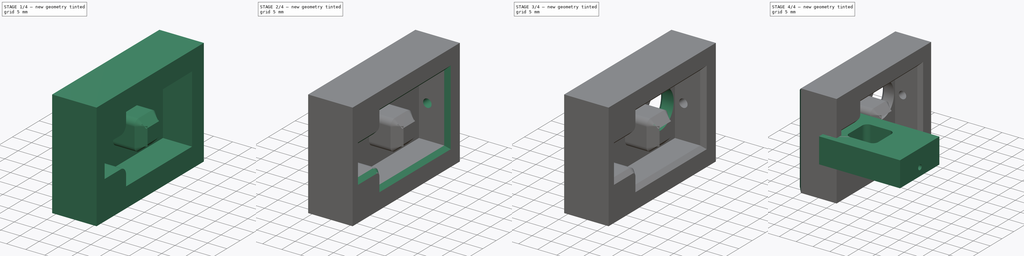
[diagram: build sequence overview — one tinted view per stage of 4, left to right]
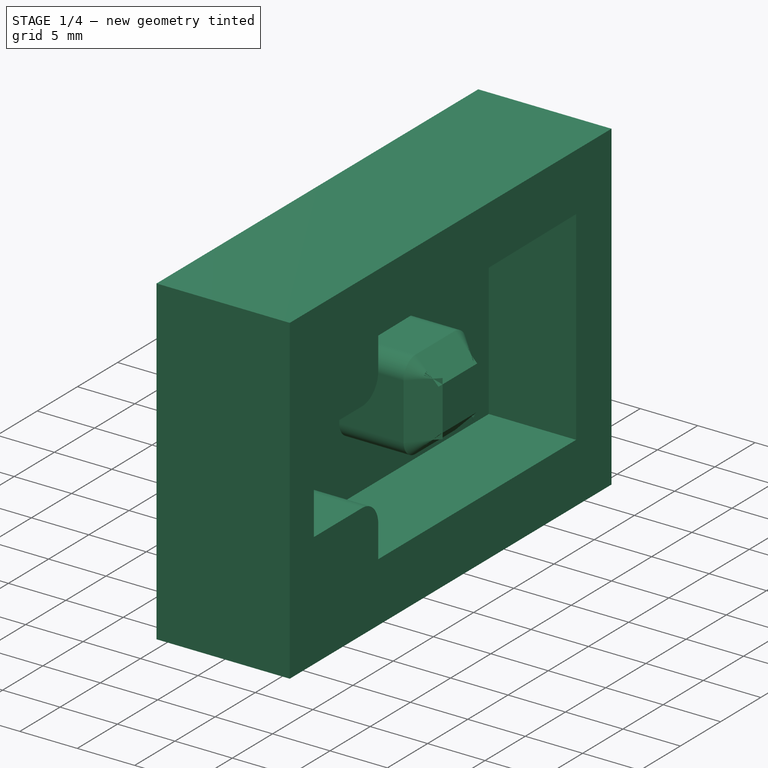
[diagram: stage 1 of 4 — iso view after this stage's code; geometry added in this stage tinted green]
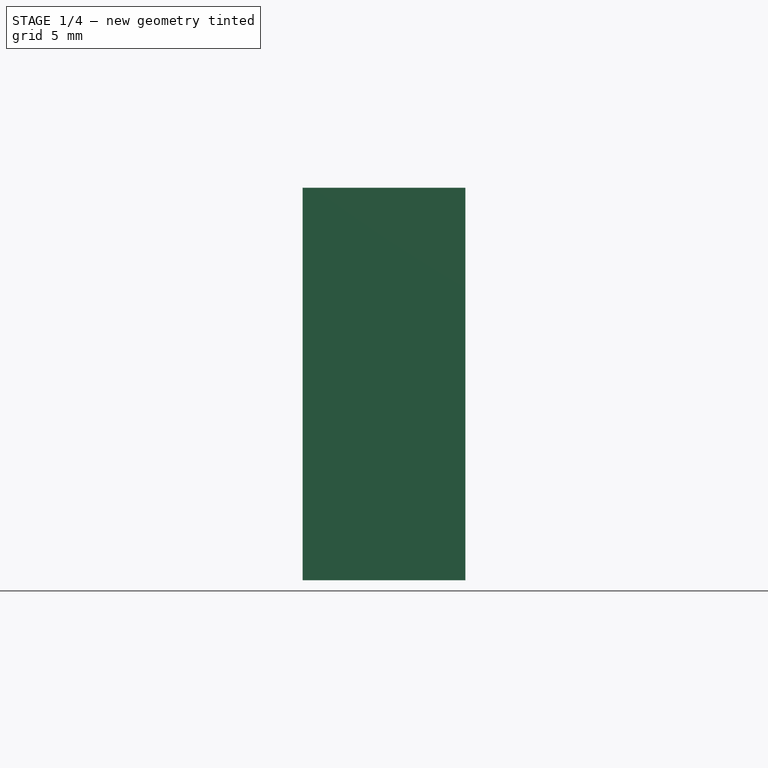
[diagram: stage 1 of 4 — front view after this stage's code; geometry added in this stage tinted green]
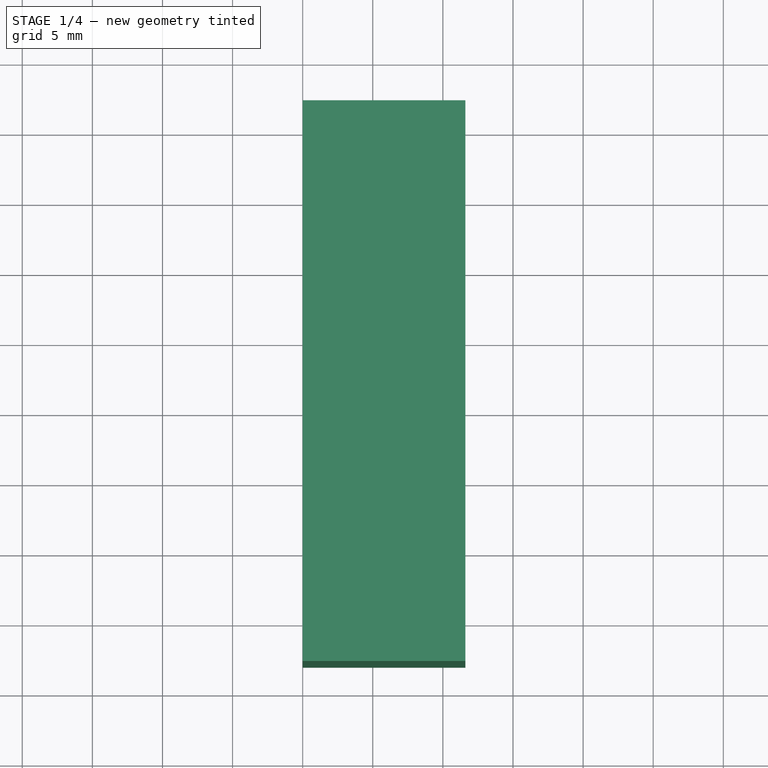
[diagram: stage 1 of 4 — top view after this stage's code; geometry added in this stage tinted green]
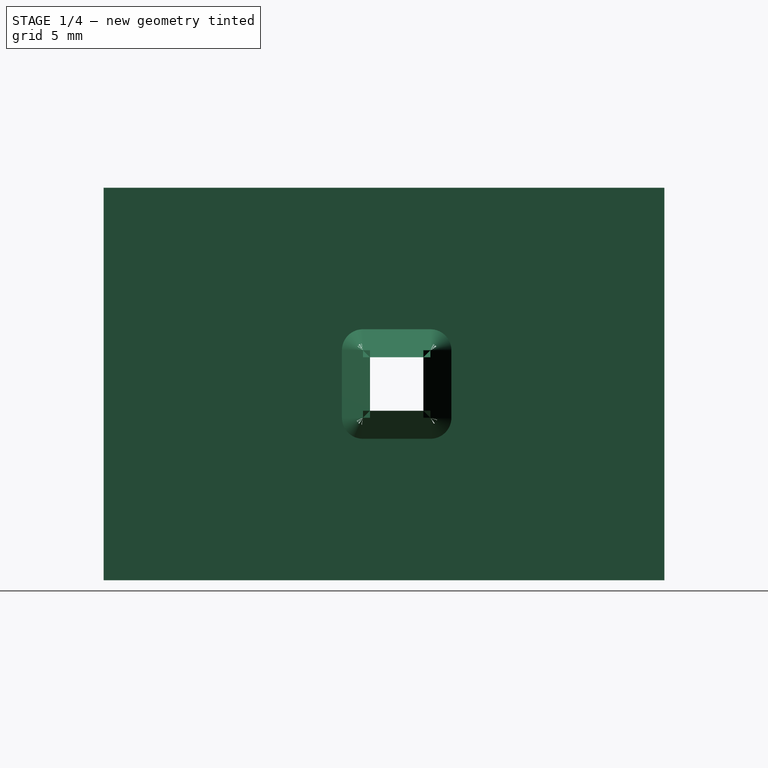
[diagram: stage 1 of 4 — right view after this stage's code; geometry added in this stage tinted green]
FCSTD DOCUMENT  (FreeCAD 1.0R39109 (Git))
Label: Servo Leg Jig
License: All rights reserved
LicenseURL: https://en.wikipedia.org/wiki/All_rights_reserved
objects: Sketcher::SketchObject×7, PartDesign::Chamfer×5, PartDesign::Pocket×4, PartDesign::Pad×2, PartDesign::Body×2, App::VarSet×1
note: 49 computed .brp shape members not serialized (recipe doc carries the construction recipe); baked Part::Feature solids carry a one-line shape summary decoded from their .brp

FEATURE [PartDesign::Body] Body007  label="sevo_legs"
  AllowCompound = false
  Group = -> [Sketch012,Pad007,Sketch015,Pocket005]
  Origin = -> Origin007
  Placement = pos=(18,0.5,7.75) rot=(-0.57735,-0.57735,0.57735;2.0944rad)
  Tip = -> Pocket005
FEATURE [App::VarSet] VarSet
  Pipe_thickness = 5
  dowel_dia = 6.2
  fillet_radius = 1.5
  gem_hole_dia = 15.5
  gem_hole_offset = 20
  mdf_thickness = 7.5
  pipe_OD = 90
  rotation_tolerence = 2.5
  servo_leg_height = 24
  servo_length = 23
  servo_width = 12.3
  shaft_width = 9
  test_tube_dia = 17
  tube_inner_dia = 79.9
FEATURE [Sketcher::SketchObject] Sketch
  ArcFitTolerance = 1e-06
  AttachmentSupport = -> [YZ_Plane]
  FullyConstrained = true
  MakeInternals = false
  MapMode = 5
  Placement = pos=(0,0,0) rot=(0.57735,0.57735,0.57735;2.0944rad)
  sketch-geometry (4):
    g0: LineSegment StartX=-3 StartY=18 StartZ=0 EndX=-3 EndY=-10 EndZ=0
    g1: LineSegment StartX=-3 StartY=-10 StartZ=0 EndX=37 EndY=-10 EndZ=0
    g2: LineSegment StartX=37 StartY=-10 StartZ=0 EndX=37 EndY=18 EndZ=0
    g3: LineSegment StartX=37 StartY=18 StartZ=0 EndX=-3 EndY=18 EndZ=0
  constraints (12):
    c: Coincident(g0,g1)
    c: Coincident(g1,g2)
    c: Coincident(g2,g3)
    c: Coincident(g3,g0)
    c: Vertical(g0)
    c: Vertical(g2)
    c: Horizontal(g1)
    c: Horizontal(g3)
    c: DistanceX(g3,g3) = 40
    c: DistanceY(g0,g0) = 28
    c: DistanceY(g0,g-1) = 10
    c: DistanceX(g0,g-1) = 3
FEATURE [PartDesign::Pad] Pad
  Direction = (1,0,0)
  Length = 11.6
  Length2 = 10
  Placement = pos=(0,0,0) rot=(1,1,1;2.0944rad)
  Profile = -> Sketch
  ReferenceAxis = -> Sketch [N_Axis]
  Refine = true
  Suppressed = false
  Type = 0
FEATURE [Sketcher::SketchObject] Sketch016
  ArcFitTolerance = 1e-06
  AttachmentSupport = -> [Pad]
  FullyConstrained = true
  MakeInternals = false
  MapMode = 5
  Placement = pos=(11.6,0,0) rot=(0.57735,0.57735,0.57735;2.0944rad)
FEATURE [Sketcher::SketchObject] Sketch017
  ArcFitTolerance = 1e-06
  AttachmentSupport = -> [Pad]
  FullyConstrained = true
  MakeInternals = false
  MapMode = 5
  Placement = pos=(11.6,0,0) rot=(0.57735,0.57735,0.57735;2.0944rad)
  sketch-geometry (24):
    g0: LineSegment StartX=0 StartY=0 StartZ=0 EndX=0 EndY=8 EndZ=0
    g1: LineSegment StartX=0 StartY=8 StartZ=0 EndX=6 EndY=8 EndZ=0
    g2: LineSegment StartX=8 StartY=10 StartZ=0 EndX=8 EndY=12.8 EndZ=0
    g3: LineSegment StartX=8 StartY=12.8 StartZ=0 EndX=32.5995 EndY=12.96 EndZ=0
    g4: LineSegment StartX=32.5995 StartY=12.96 StartZ=0 EndX=32.5995 EndY=-4.8 EndZ=0
    g5: LineSegment StartX=32.5995 StartY=-4.8 StartZ=0 EndX=7.99948 EndY=-4.8 EndZ=0
    g6: LineSegment StartX=7.99948 StartY=-4.8 StartZ=0 EndX=7.99948 EndY=-2 EndZ=0
    g7: LineSegment StartX=5.99948 StartY=0 StartZ=0 EndX=0 EndY=0 EndZ=0
    g8: LineSegment StartX=14 StartY=6.40416 StartZ=0 EndX=14 EndY=1.59584 EndZ=0
    g9: LineSegment StartX=15.5 StartY=0.0958369 StartZ=0 EndX=20.3083 EndY=0.0958369 EndZ=0
    g10: LineSegment StartX=21.8083 StartY=1.59584 StartZ=0 EndX=21.8083 EndY=6.40416 EndZ=0
    g11: LineSegment StartX=20.3083 StartY=7.90416 StartZ=0 EndX=15.5 EndY=7.90416 EndZ=0
    g12: ArcOfCircle CenterX=15.5 CenterY=6.40416 CenterZ=0 NormalX=0 NormalY=0 NormalZ=1 AngleXU=0 Radius=1.5 StartAngle=1.5708 EndAngle=3.14159
    g13: ArcOfCircle CenterX=15.5 CenterY=1.59584 CenterZ=0 NormalX=0 NormalY=0 NormalZ=1 AngleXU=0 Radius=1.5 StartAngle=3.14159 EndAngle=4.71239
    g14: ArcOfCircle CenterX=20.3083 CenterY=1.59584 CenterZ=0 NormalX=0 NormalY=0 NormalZ=1 AngleXU=0 Radius=1.5 StartAngle=4.71239 EndAngle=6.28319
    g15: ArcOfCircle CenterX=20.3083 CenterY=6.40416 CenterZ=0 NormalX=0 NormalY=0 NormalZ=1 AngleXU=0 Radius=1.5 StartAngle=1e-16 EndAngle=1.5708
    g16: GeomPoint [constr] X=14 Y=7.90416 Z=0
    g17: GeomPoint [constr] X=21.8083 Y=0.0958369 Z=0
    g18: LineSegment [constr] StartX=15.5 StartY=6.40416 StartZ=0 EndX=20.3083 EndY=1.59584 EndZ=0
    g19: LineSegment [constr] StartX=15.5 StartY=1.59584 StartZ=0 EndX=17.9042 EndY=4 EndZ=0
    g20: ArcOfCircle CenterX=5.99948 CenterY=-2 CenterZ=0 NormalX=0 NormalY=0 NormalZ=1 AngleXU=0 Radius=2 StartAngle=0 EndAngle=1.5708
    g21: GeomPoint [constr] X=7.99948 Y=0 Z=0
    g22: ArcOfCircle CenterX=6 CenterY=10 CenterZ=0 NormalX=0 NormalY=0 NormalZ=1 AngleXU=0 Radius=2 StartAngle=4.71239 EndAngle=6.28319
    g23: GeomPoint [constr] X=8 Y=8 Z=0
  constraints (59):
    c: Coincident(g0,g-1)
    c: PointOnObject(g0,g-2)
    c: Coincident(g0,g1)
    c: Horizontal(g1)
    c: Vertical(g2)
    c: Coincident(g2,g3)
    c: Coincident(g3,g4)
    c: Vertical(g4)
    c: Coincident(g4,g5)
    c: Horizontal(g5)
    c: Coincident(g5,g6)
    c: PointOnObject(g21,g-1)
    c: Vertical(g6)
    c: Coincident(g7,g0)
    c: Equal(g3,g5)
    c: DistanceX(g1,g23) = 8
    c: Distance(g0,g0) = 8
    c: DistanceX(g5,g5) = 24.6
    c: Tangent(g8,g12) = -1.5708
    c: Tangent(g8,g13) = -1.5708
    c: Tangent(g9,g13) = -1.5708
    c: Tangent(g9,g14) = -1.5708
    c: Tangent(g10,g14) = -1.5708
    c: Tangent(g10,g15) = -1.5708
    c: Tangent(g11,g15) = -1.5708
    c: Tangent(g11,g12) = -1.5708
    c: Vertical(g8)
    c: Vertical(g10)
    c: Horizontal(g9)
    c: Horizontal(g11)
    c: Equal(g12,g13)
    c: Equal(g13,g14)
    c: Equal(g14,g15)
    c: PointOnObject(g16,g8)
    c: PointOnObject(g16,g11)
    c: PointOnObject(g17,g9)
    c: PointOnObject(g17,g10)
    c: Radius(g13) = 1.5
    c: Coincident(g18,g12)
    c: Coincident(g18,g14)
    c: Coincident(g19,g13)
    c: Symmetric(g18,g18,g19)
    c: Equal(g11,g8)
    c: Distance(g19,g-1) = 4
    c: Distance(g18,g18) = 6.8
    c: Distance(g23,g8) = 6
    c: DistanceY(g6,g21) = 4.8
    c: PointOnObject(g21,g7)
    c: PointOnObject(g21,g6)
    c: Tangent(g7,g20) = -1.5708
    c: Tangent(g6,g20) = -1.5708
    c: PointOnObject(g23,g2)
    c: PointOnObject(g23,g1)
    c: Tangent(g2,g22) = -1.5708
    c: Tangent(g1,g22) = -1.5708
    c: Diameter(g20) = 4
    c: Diameter(g22) = 4
    c: DistanceY(g23,g2) = 4.8
    c: DistanceY(g4,g4) = 17.76
FEATURE [PartDesign::Pocket] Pocket
  BaseFeature = -> Pad
  Direction = (-1,0,0)
  Length = 7.6
  Length2 = 5
  Placement = pos=(0,0,0) rot=(1,1,1;2.0944rad)
  Profile = -> Sketch017
  ReferenceAxis = -> Sketch017 [N_Axis]
  Refine = true
  Suppressed = false
  Type = 0
FEATURE [PartDesign::Chamfer] Chamfer
  Angle = 45
  Base = -> Pocket [Edge53]
  BaseFeature = -> Pocket
  ChamferType = 0
  FlipDirection = false
  Placement = pos=(0,0,0) rot=(1,1,1;2.0944rad)
  Refine = true
  Size = 2
  Size2 = 1
  SupportTransform = false
  Suppressed = false
  UseAllEdges = false
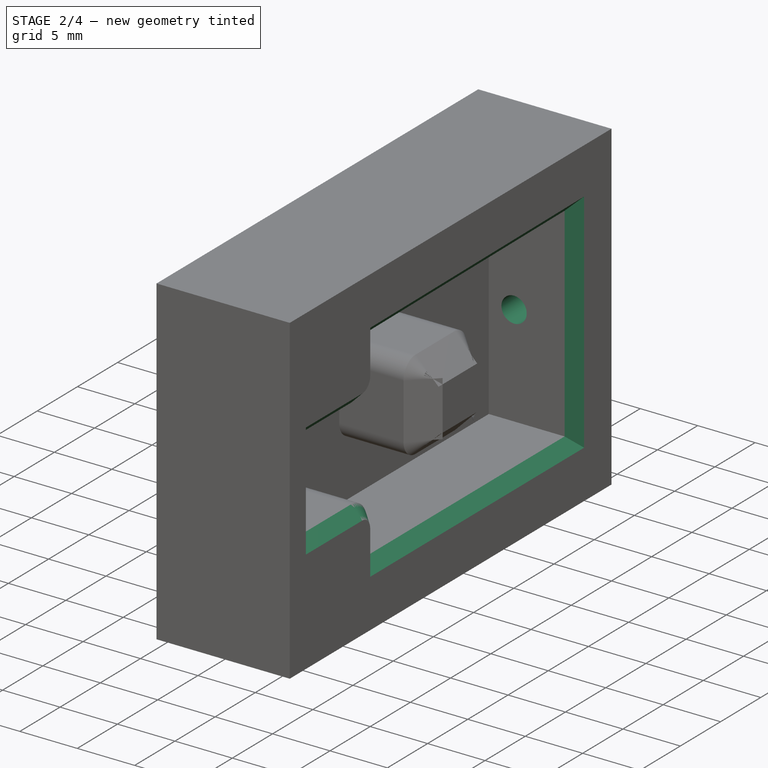
[diagram: stage 2 of 4 — iso view after this stage's code; geometry added in this stage tinted green]
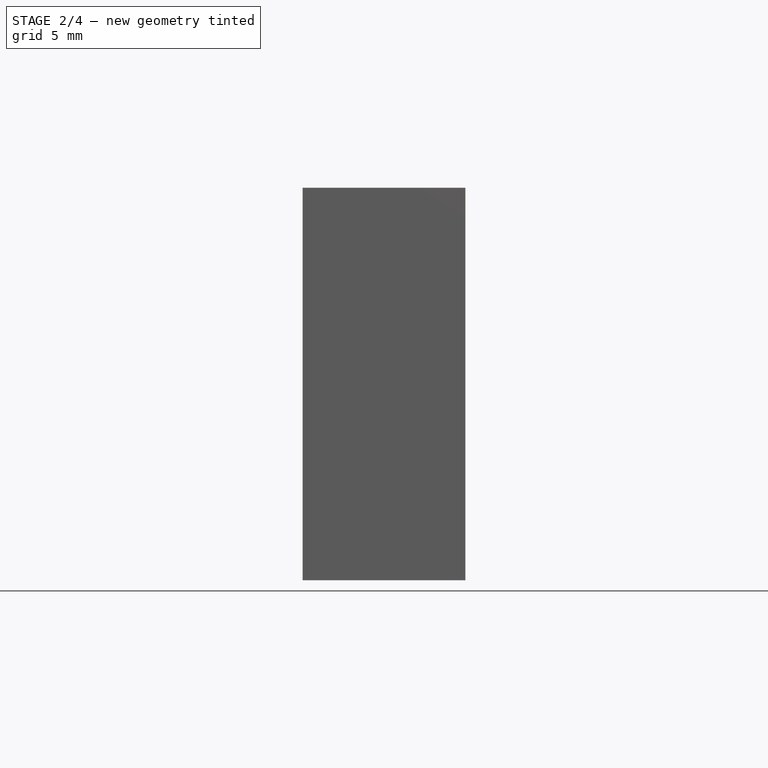
[diagram: stage 2 of 4 — front view after this stage's code; geometry added in this stage tinted green]
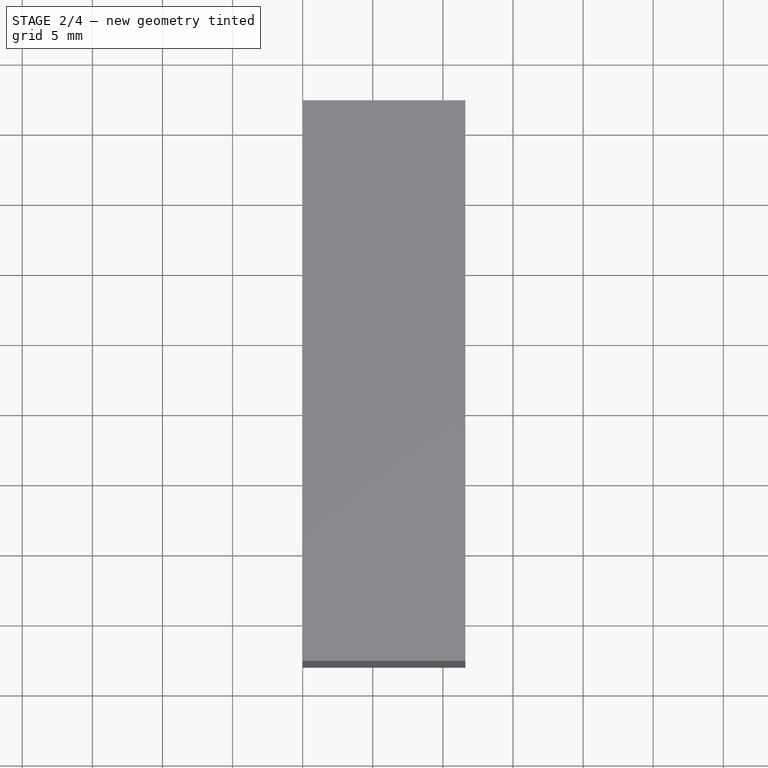
[diagram: stage 2 of 4 — top view after this stage's code; geometry added in this stage tinted green]
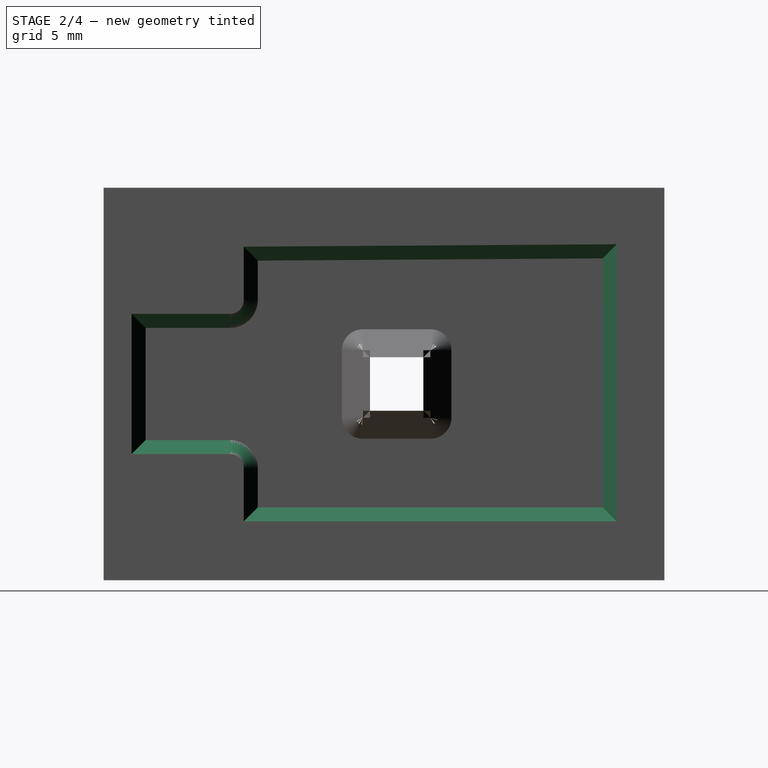
[diagram: stage 2 of 4 — right view after this stage's code; geometry added in this stage tinted green]
FEATURE [PartDesign::Chamfer] Chamfer001
  Angle = 45
  Base = -> Chamfer [Edge44,Edge42,Edge59,Edge58,Edge56,Edge54,Edge46,Edge48,Edge50,Edge52]
  BaseFeature = -> Chamfer
  ChamferType = 0
  FlipDirection = false
  Placement = pos=(0,0,0) rot=(1,1,1;2.0944rad)
  Refine = true
  Size = 1
  Size2 = 1
  SupportTransform = false
  Suppressed = false
  UseAllEdges = false
FEATURE [Sketcher::SketchObject] Sketch018
  ArcFitTolerance = 1e-06
  AttachmentSupport = -> [Chamfer001]
  FullyConstrained = true
  MakeInternals = false
  MapMode = 5
  Placement = pos=(8.1e-15,37,-1.23e-14) rot=(0.57735,0.57735,0.57735;4.18879rad)
  sketch-geometry (1):
    g0: Circle CenterX=4 CenterY=6.2 CenterZ=0 NormalX=0 NormalY=0 NormalZ=1 AngleXU=0 Radius=1.1
  constraints (3):
    c: Diameter(g0) = 2.2
    c: DistanceX(g-1,g0) = 4
    c: DistanceY(g-1,g0) = 6.2
FEATURE [PartDesign::Pocket] Pocket006
  BaseFeature = -> Chamfer001
  Direction = (0,-1,0)
  Length = 5
  Length2 = 5
  Placement = pos=(0,0,0) rot=(1,1,1;2.0944rad)
  Profile = -> Sketch018
  ReferenceAxis = -> Sketch018 [N_Axis]
  Refine = true
  Suppressed = false
  Type = 0
FEATURE [PartDesign::Chamfer] Chamfer002
  Angle = 45
  Base = -> Pocket006 [Edge88]
  BaseFeature = -> Pocket006
  ChamferType = 0
  FlipDirection = false
  Placement = pos=(0,0,0) rot=(1,1,1;2.0944rad)
  Refine = true
  Size = 1
  Size2 = 1
  SupportTransform = false
  Suppressed = false
  UseAllEdges = false
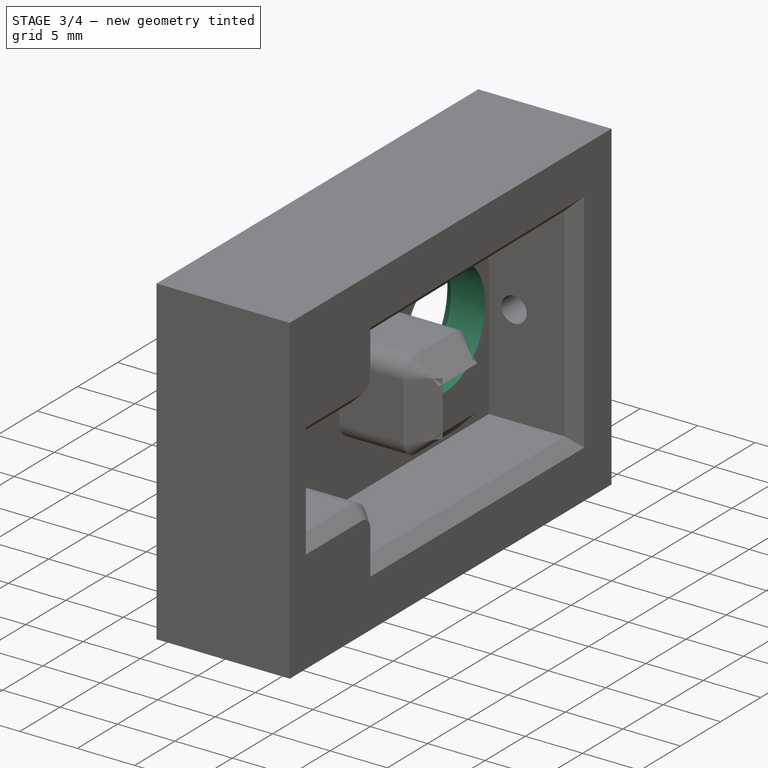
[diagram: stage 3 of 4 — iso view after this stage's code; geometry added in this stage tinted green]
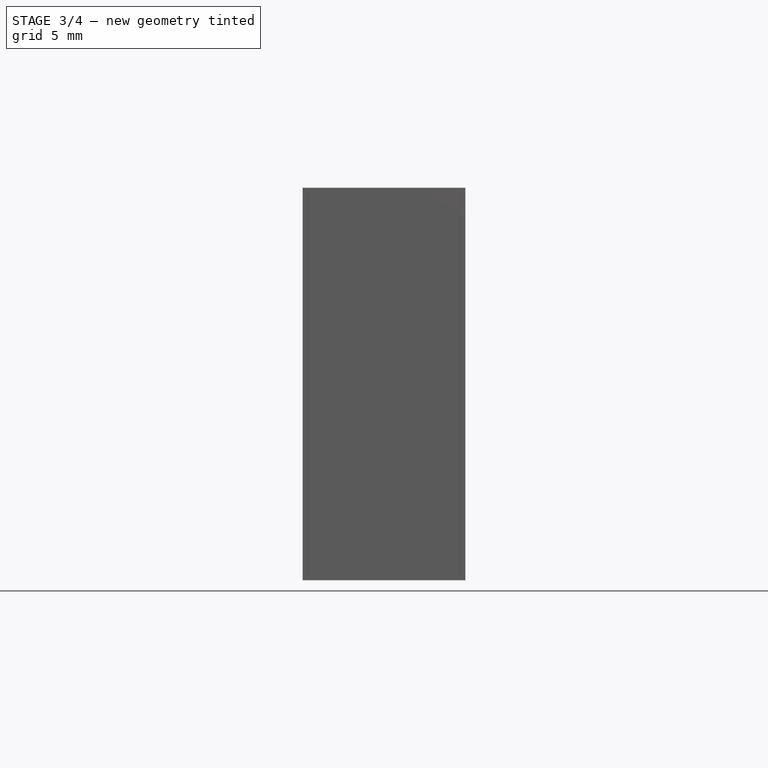
[diagram: stage 3 of 4 — front view after this stage's code; geometry added in this stage tinted green]
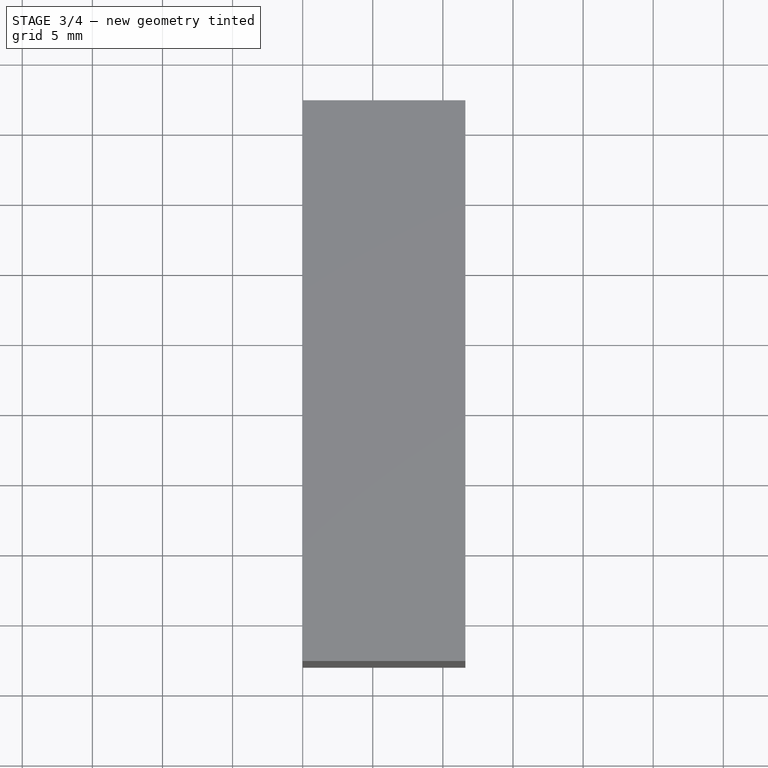
[diagram: stage 3 of 4 — top view after this stage's code; geometry added in this stage tinted green]
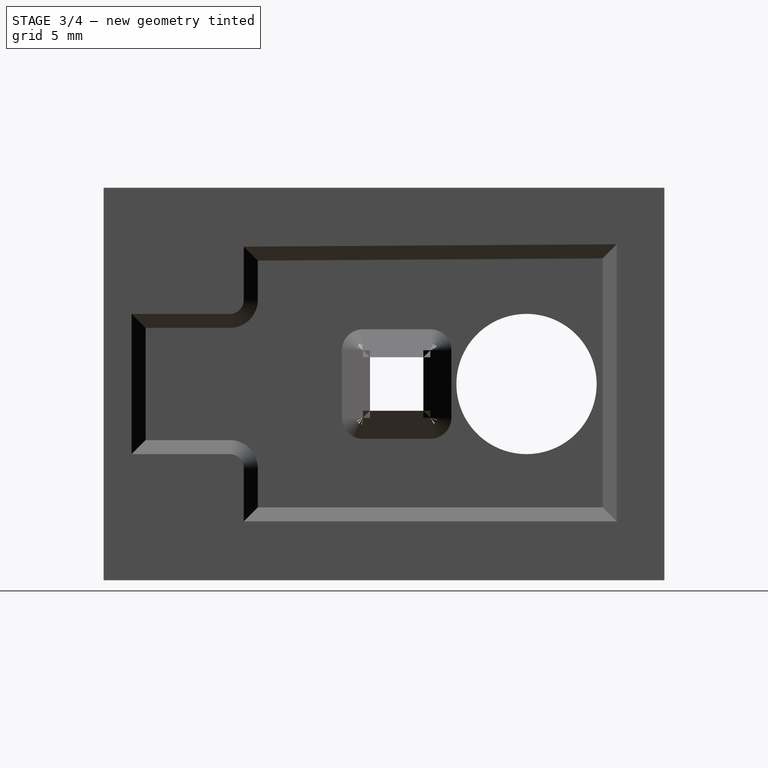
[diagram: stage 3 of 4 — right view after this stage's code; geometry added in this stage tinted green]
FEATURE [Sketcher::SketchObject] Sketch019
  ArcFitTolerance = 1e-06
  AttachmentSupport = -> [Chamfer002]
  FullyConstrained = false
  MakeInternals = false
  MapMode = 5
  Placement = pos=(4,-1.8e-15,9e-16) rot=(0.57735,0.57735,0.57735;2.0944rad)
  sketch-geometry (1):
    g0: Circle CenterX=27.1642 CenterY=4 CenterZ=0 NormalX=0 NormalY=0 NormalZ=1 AngleXU=0 Radius=5
  constraints (2):
    c: Diameter(g0) = 10
    c: DistanceY(g-1,g0) = 4
FEATURE [PartDesign::Pocket] Pocket007
  BaseFeature = -> Chamfer002
  Direction = (-1,0,0)
  Length = 5
  Length2 = 5
  Placement = pos=(0,0,0) rot=(1,1,1;2.0944rad)
  Profile = -> Sketch019
  ReferenceAxis = -> Sketch019 [N_Axis]
  Refine = true
  Suppressed = false
  Type = 0
FEATURE [PartDesign::Chamfer] Chamfer003
  Angle = 45
  Base = -> Pocket007 [Edge13]
  BaseFeature = -> Pocket007
  ChamferType = 0
  FlipDirection = false
  Placement = pos=(0,0,0) rot=(1,1,1;2.0944rad)
  Refine = true
  Size = 1
  Size2 = 1
  SupportTransform = false
  Suppressed = false
  UseAllEdges = false
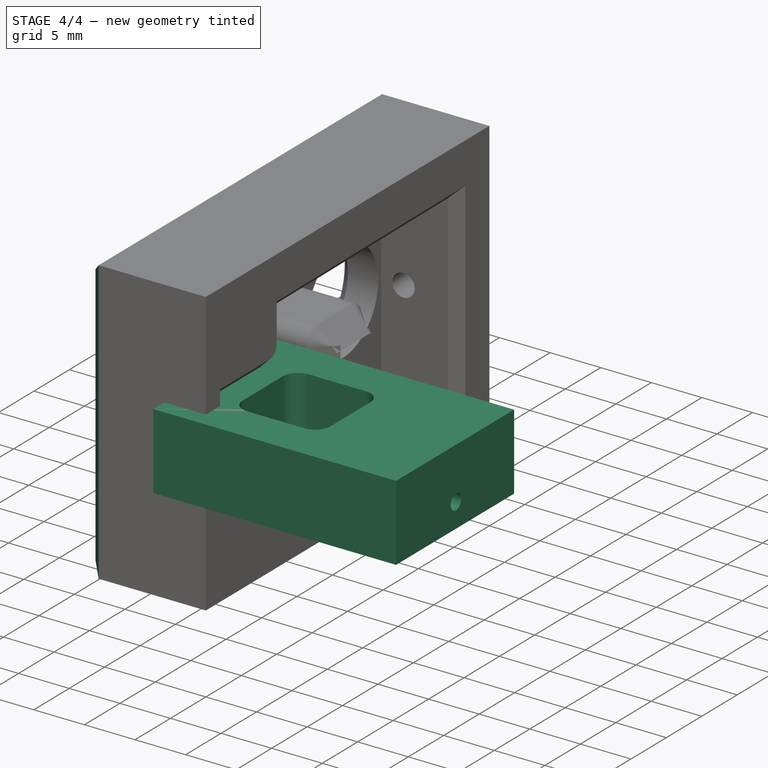
[diagram: stage 4 of 4 — iso view after this stage's code; geometry added in this stage tinted green]
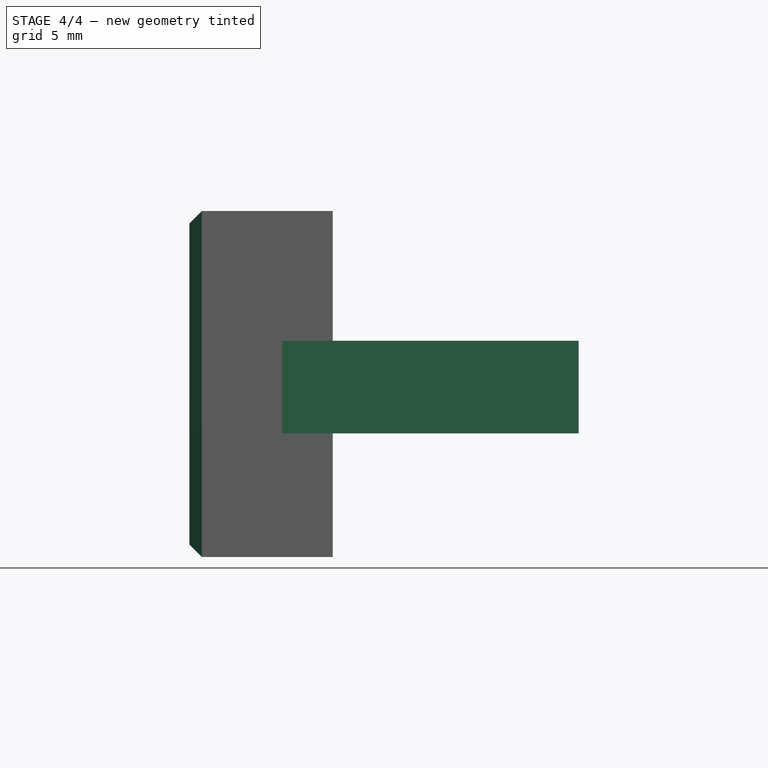
[diagram: stage 4 of 4 — front view after this stage's code; geometry added in this stage tinted green]
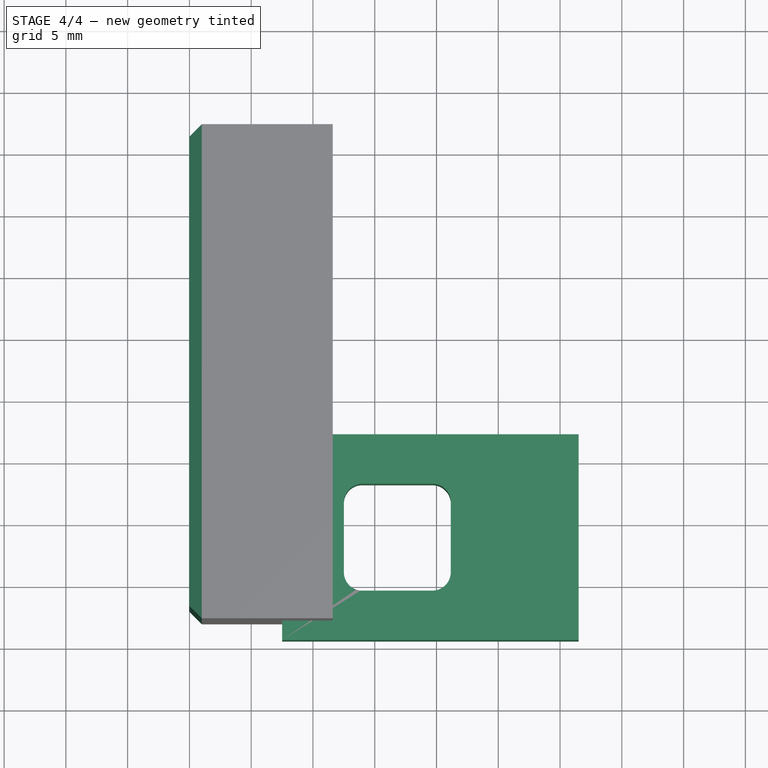
[diagram: stage 4 of 4 — top view after this stage's code; geometry added in this stage tinted green]
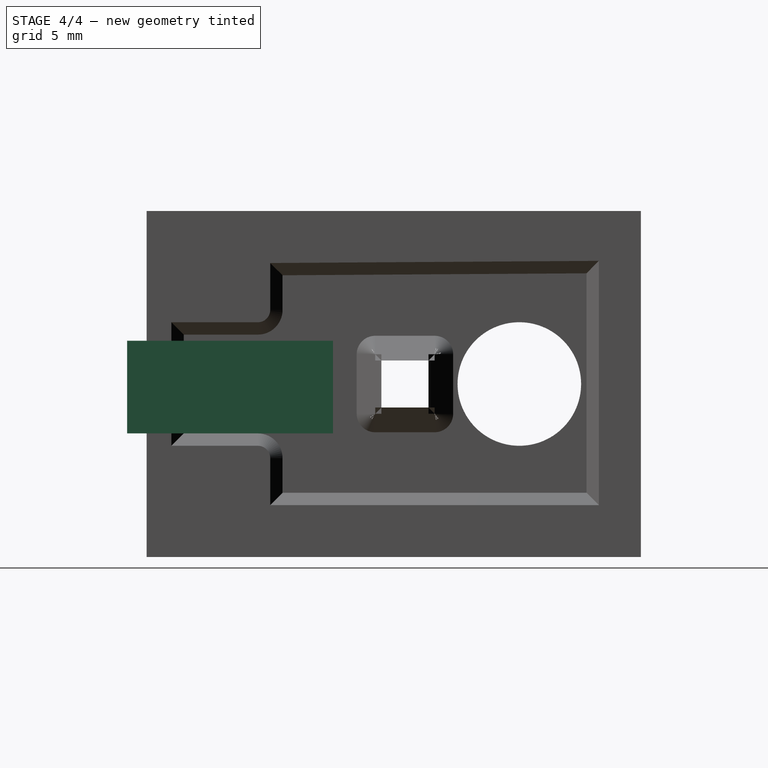
[diagram: stage 4 of 4 — right view after this stage's code; geometry added in this stage tinted green]
FEATURE [Sketcher::SketchObject] Sketch012
  ArcFitTolerance = 1e-06
  AttachmentSupport = -> [XY_Plane007]
  FullyConstrained = true
  MakeInternals = false
  MapMode = 5
  expr: Constraints[19] = VarSet.mdf_thickness
  expr: Constraints[20] = VarSet.mdf_thickness
  expr: Constraints[21] = VarSet.servo_leg_height
  expr: Constraints[41] = VarSet.fillet_radius
  expr: Constraints[47] = VarSet.mdf_thickness / 2
  sketch-geometry (20):
    g0: LineSegment StartX=0 StartY=0 StartZ=0 EndX=0 EndY=7.5 EndZ=0
    g1: LineSegment StartX=0 StartY=7.5 StartZ=0 EndX=7.5 EndY=7.5 EndZ=0
    g2: LineSegment StartX=7.5 StartY=7.5 StartZ=0 EndX=7.5 EndY=12.0784 EndZ=0
    g3: LineSegment StartX=7.5 StartY=12.0784 StartZ=0 EndX=31.5 EndY=12.0784 EndZ=0
    g4: LineSegment StartX=31.5 StartY=12.0784 StartZ=0 EndX=31.5 EndY=-4.57843 EndZ=0
    g5: LineSegment StartX=31.5 StartY=-4.57843 StartZ=0 EndX=7.5 EndY=-4.57843 EndZ=0
    g6: LineSegment StartX=7.5 StartY=-4.57843 StartZ=0 EndX=7.5 EndY=0 EndZ=0
    g7: LineSegment StartX=7.5 StartY=0 StartZ=0 EndX=0 EndY=0 EndZ=0
    g8: LineSegment StartX=12.5 StartY=6.57843 StartZ=0 EndX=12.5 EndY=0.921573 EndZ=0
    g9: LineSegment StartX=14 StartY=-0.578427 StartZ=0 EndX=19.6569 EndY=-0.578427 EndZ=0
    g10: LineSegment StartX=21.1569 StartY=0.921573 StartZ=0 EndX=21.1569 EndY=6.57843 EndZ=0
    g11: LineSegment StartX=19.6569 StartY=8.07843 StartZ=0 EndX=14 EndY=8.07843 EndZ=0
    g12: ArcOfCircle CenterX=14 CenterY=6.57843 CenterZ=0 NormalX=0 NormalY=0 NormalZ=1 AngleXU=0 Radius=1.5 StartAngle=1.5708 EndAngle=3.14159
    g13: ArcOfCircle CenterX=14 CenterY=0.921573 CenterZ=0 NormalX=0 NormalY=0 NormalZ=1 AngleXU=0 Radius=1.5 StartAngle=3.14159 EndAngle=4.71239
    g14: ArcOfCircle CenterX=19.6569 CenterY=0.921573 CenterZ=0 NormalX=0 NormalY=0 NormalZ=1 AngleXU=0 Radius=1.5 StartAngle=4.71239 EndAngle=6.28319
    g15: ArcOfCircle CenterX=19.6569 CenterY=6.57843 CenterZ=0 NormalX=0 NormalY=0 NormalZ=1 AngleXU=0 Radius=1.5 StartAngle=0 EndAngle=1.5708
    g16: GeomPoint [constr] X=12.5 Y=8.07843 Z=0
    g17: GeomPoint [constr] X=21.1569 Y=-0.578427 Z=0
    g18: LineSegment [constr] StartX=14 StartY=6.57843 StartZ=0 EndX=19.6569 EndY=0.921573 EndZ=0
    g19: LineSegment [constr] StartX=14 StartY=0.921573 StartZ=0 EndX=16.8284 EndY=3.75 EndZ=0
  constraints (51):
    c: Coincident(g0,g-1)
    c: PointOnObject(g0,g-2)
    c: Coincident(g0,g1)
    c: Horizontal(g1)
    c: Coincident(g1,g2)
    c: Vertical(g2)
    c: Coincident(g2,g3)
    c: Coincident(g3,g4)
    c: Vertical(g4)
    c: Coincident(g4,g5)
    c: Horizontal(g5)
    c: Coincident(g5,g6)
    c: PointOnObject(g6,g-1)
    c: Vertical(g6)
    c: Coincident(g6,g7)
    c: Coincident(g7,g0)
    c: Equal(g1,g7)
    c: Equal(g3,g5)
    c: Equal(g2,g6)
    c: DistanceX(g1,g1) = 7.5
    c: Distance(g0,g0) = 7.5
    c: DistanceX(g5,g5) = 24
    c: Tangent(g8,g12) = -1.5708
    c: Tangent(g8,g13) = -1.5708
    c: Tangent(g9,g13) = -1.5708
    c: Tangent(g9,g14) = -1.5708
    c: Tangent(g10,g14) = -1.5708
    c: Tangent(g10,g15) = -1.5708
    c: Tangent(g11,g15) = -1.5708
    c: Tangent(g11,g12) = -1.5708
    c: Vertical(g8)
    c: Vertical(g10)
    c: Horizontal(g9)
    c: Horizontal(g11)
    c: Equal(g12,g13)
    c: Equal(g13,g14)
    c: Equal(g14,g15)
    c: PointOnObject(g16,g8)
    c: PointOnObject(g16,g11)
    c: PointOnObject(g17,g9)
    c: PointOnObject(g17,g10)
    c: Radius(g13) = 1.5
    c: Coincident(g18,g12)
    c: Coincident(g18,g14)
    c: Coincident(g19,g13)
    c: Symmetric(g18,g18,g19)
    c: Equal(g11,g8)
    c: Distance(g19,g-1) = 3.75
    c: Distance(g18,g18) = 8
    c: Distance(g2,g8) = 5
    c: Distance(g5,g9) = 4
FEATURE [PartDesign::Pad] Pad007
  Direction = (0,0,1)
  Length = 7.5
  Length2 = 10
  Profile = -> Sketch012
  ReferenceAxis = -> Sketch012 [N_Axis]
  Refine = true
  Suppressed = false
  Type = 0
  expr: Length = VarSet.mdf_thickness
FEATURE [Sketcher::SketchObject] Sketch015
  ArcFitTolerance = 1e-06
  AttachmentSupport = -> [Pad007]
  ExternalGeometry = -> [Pad007]
  FullyConstrained = false
  MakeInternals = false
  MapMode = 5
  Placement = pos=(31.5,0,0) rot=(0.57735,0.57735,0.57735;2.0944rad)
  sketch-geometry (1):
    g0: Circle CenterX=3.87266 CenterY=2.4 CenterZ=0 NormalX=0 NormalY=0 NormalZ=1 AngleXU=0 Radius=0.75
  constraints (2):
    c: Distance(g0,g-3) = 2.4
    c: Diameter(g0) = 1.5
FEATURE [PartDesign::Pocket] Pocket005
  BaseFeature = -> Pad007
  Direction = (-1,0,0)
  Length = 5
  Length2 = 5
  Profile = -> Sketch015
  ReferenceAxis = -> Sketch015 [N_Axis]
  Refine = true
  Suppressed = false
  Type = 0
FEATURE [PartDesign::Chamfer] Chamfer004
  Angle = 45
  Base = -> Chamfer003 [Edge3,Edge5,Edge4,Edge2]
  BaseFeature = -> Chamfer003
  ChamferType = 0
  FlipDirection = false
  Placement = pos=(0,0,0) rot=(1,1,1;2.0944rad)
  Refine = true
  Size = 1
  Size2 = 1
  SupportTransform = false
  Suppressed = false
  UseAllEdges = false
FEATURE [PartDesign::Body] Body
  AllowCompound = false
  Group = -> [Sketch,Pad,Sketch016,Sketch017,Pocket,Chamfer,Chamfer001,Sketch018,Pocket006,Chamfer002,Sketch019,Pocket007,Chamfer003,Chamfer004]
  Origin = -> Origin
  Tip = -> Chamfer004
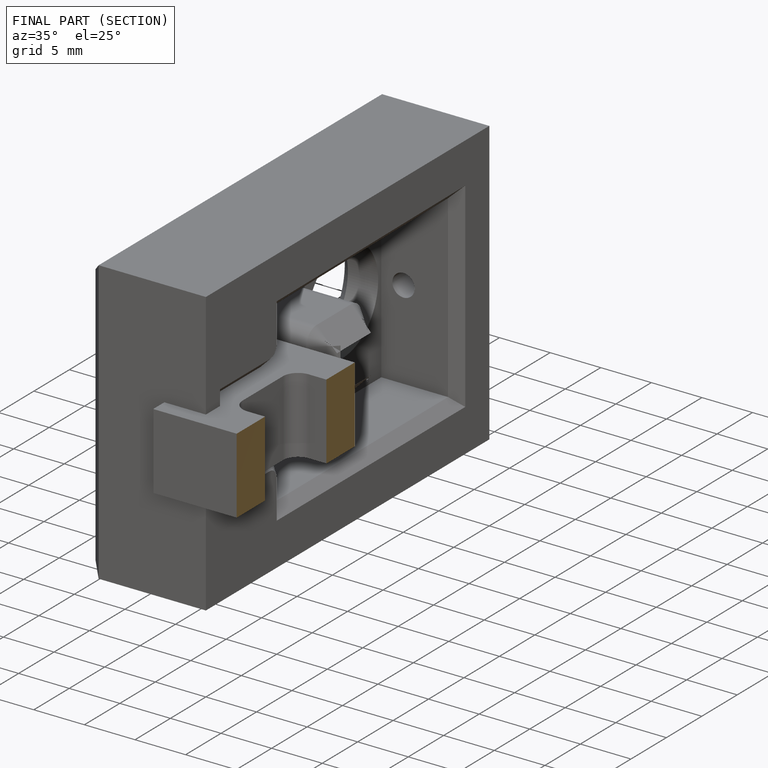
[diagram: finished part — half-section view (interior)]
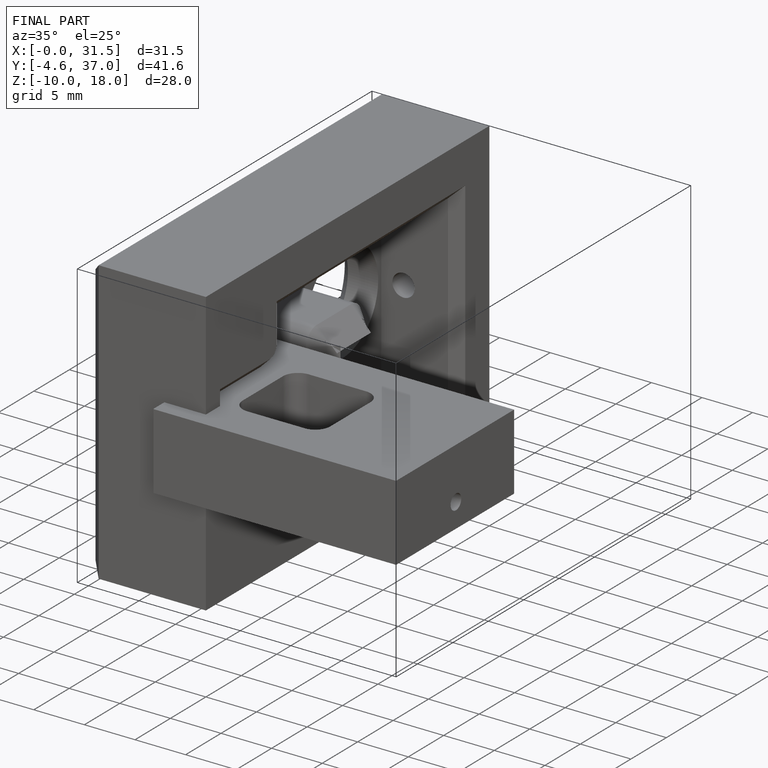
[diagram: finished part — iso view with bounding-box wireframe]
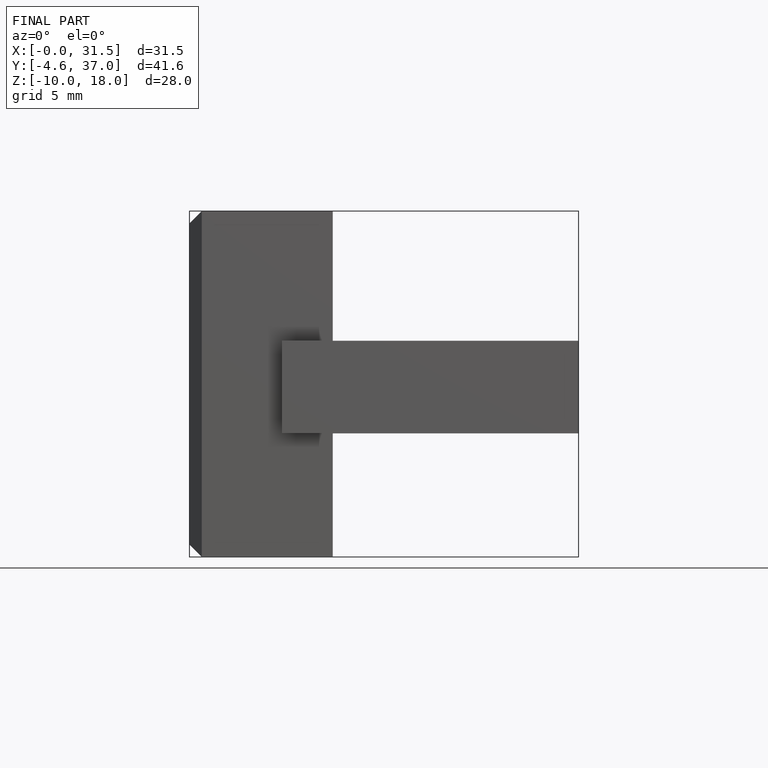
[diagram: finished part — front view with bounding-box wireframe]
